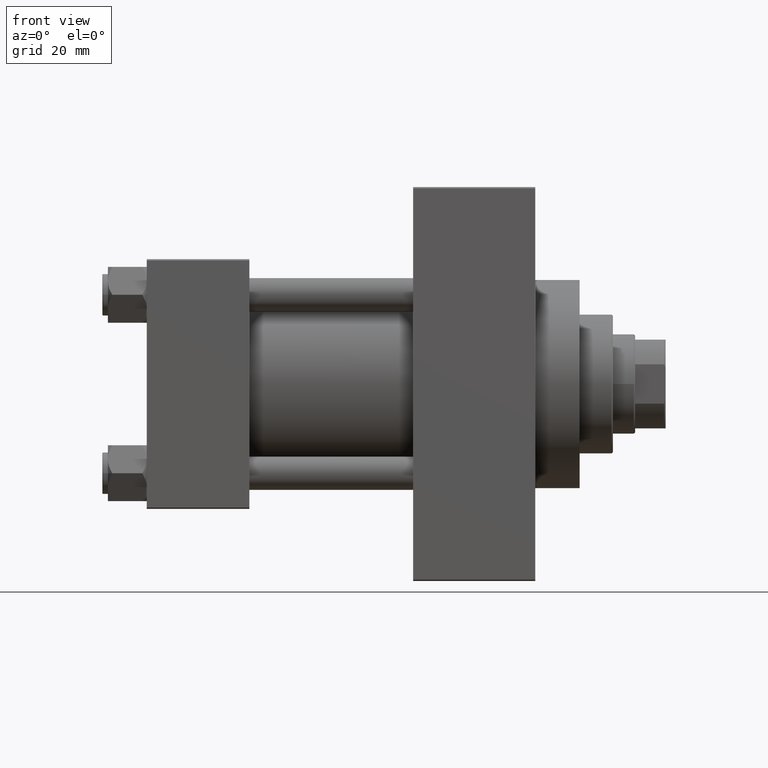
[diagram: clean part render]
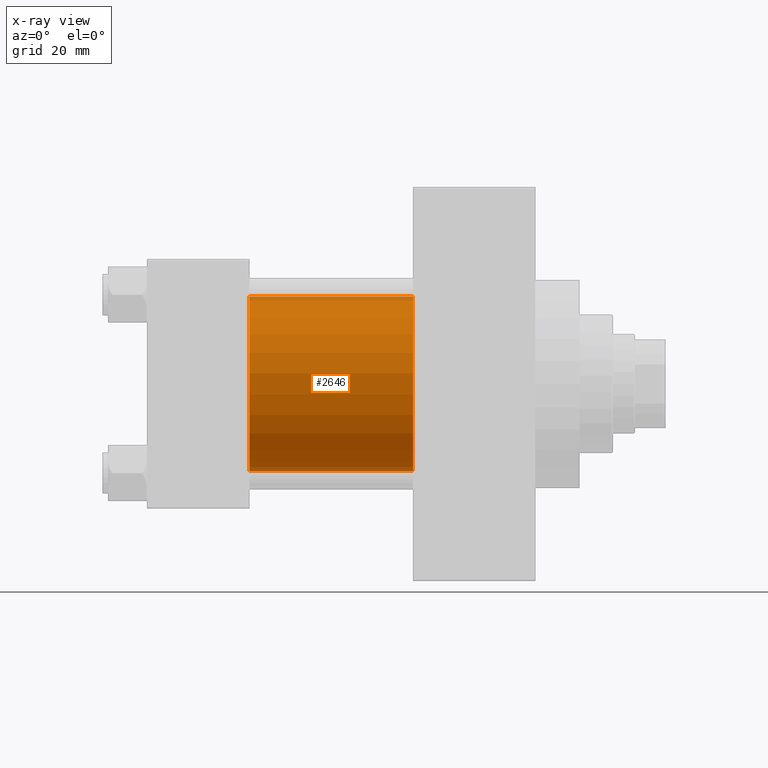
[diagram: x-ray — body ghosted, one internal face saturated and labeled with its STEP entity id]
A machine part, front view, then the same camera in x-ray: the body is ghosted and one INTERNAL B-rep face — a face not visible from any outside direction — is saturated and labeled: STEP entity #2646.
In plain terms, the highlighted cylindrical surface (partial cylindrical patch) has radius 31.5 mm, axis along (-1, -0, -0).
Its self-contained STEP definition (entity closure, byte-faithful):
#782 = DIRECTION ( 'NONE',  ( 1.000000000000000000, 0.000000000000000000, 0.000000000000000000 ) ) ;
#2646 = ADVANCED_FACE ( 'NONE', ( #42927 ), #42687, .F. ) ;
#4017 = VERTEX_POINT ( 'NONE', #13207 ) ;
#4091 = VERTEX_POINT ( 'NONE', #6292 ) ;
#4808 = LINE ( 'NONE', #19363, #28114 ) ;
#6292 = CARTESIAN_POINT ( 'NONE',  ( 96.00000000000000000, 1.255552203348951850E-15, -31.50000000000000000 ) ) ;
#9272 = CARTESIAN_POINT ( 'NONE',  ( 96.00000000000000000, 1.255552203348951850E-15, -31.50000000000000000 ) ) ;
#11593 = EDGE_CURVE ( 'NONE', #12850, #4091, #26956, .T. ) ;
#11750 = CARTESIAN_POINT ( 'NONE',  ( 37.00000000000000000, -2.602085213965210642E-15, 0.000000000000000000 ) ) ;
#12754 = CARTESIAN_POINT ( 'NONE',  ( 37.00000000000000000, -2.602085213965210642E-15, 31.50000000000000000 ) ) ;
#12850 = VERTEX_POINT ( 'NONE', #26552 ) ;
#12924 = EDGE_CURVE ( 'NONE', #15577, #4017, #30047, .T. ) ;
#13083 = DIRECTION ( 'NONE',  ( 0.000000000000000000, 0.000000000000000000, 1.000000000000000000 ) ) ;
#13207 = CARTESIAN_POINT ( 'NONE',  ( 37.00000000000000000, 1.255552203348951850E-15, -31.50000000000000000 ) ) ;
#15577 = VERTEX_POINT ( 'NONE', #12754 ) ;
#17621 = CARTESIAN_POINT ( 'NONE',  ( 96.00000000000000000, -2.602085213965210642E-15, 0.000000000000000000 ) ) ;
#17975 = VECTOR ( 'NONE', #27213, 1000.000000000000000 ) ;
#18498 = DIRECTION ( 'NONE',  ( 0.000000000000000000, 0.000000000000000000, -1.000000000000000000 ) ) ;
#19363 = CARTESIAN_POINT ( 'NONE',  ( 96.00000000000000000, -2.602085213965210642E-15, 31.50000000000000000 ) ) ;
#20731 = DIRECTION ( 'NONE',  ( -1.000000000000000000, -0.000000000000000000, -0.000000000000000000 ) ) ;
#21863 = CARTESIAN_POINT ( 'NONE',  ( 96.00000000000000000, -2.602085213965210642E-15, 0.000000000000000000 ) ) ;
#23208 = AXIS2_PLACEMENT_3D ( 'NONE', #11750, #782, #23446 ) ;
#23446 = DIRECTION ( 'NONE',  ( 0.000000000000000000, 0.000000000000000000, -1.000000000000000000 ) ) ;
#23647 = DIRECTION ( 'NONE',  ( -1.000000000000000000, -0.000000000000000000, -0.000000000000000000 ) ) ;
#24156 = ORIENTED_EDGE ( 'NONE', *, *, #24983, .T. ) ;
#24983 = EDGE_CURVE ( 'NONE', #4091, #4017, #31255, .T. ) ;
#26552 = CARTESIAN_POINT ( 'NONE',  ( 96.00000000000000000, -2.602085213965210642E-15, 31.50000000000000000 ) ) ;
#26956 = CIRCLE ( 'NONE', #45989, 31.50000000000000000 ) ;
#27177 = ORIENTED_EDGE ( 'NONE', *, *, #11593, .T. ) ;
#27213 = DIRECTION ( 'NONE',  ( -1.000000000000000000, -0.000000000000000000, -0.000000000000000000 ) ) ;
#28114 = VECTOR ( 'NONE', #23647, 1000.000000000000000 ) ;
#29264 = DIRECTION ( 'NONE',  ( 1.000000000000000000, 0.000000000000000000, 0.000000000000000000 ) ) ;
#30047 = CIRCLE ( 'NONE', #23208, 31.50000000000000000 ) ;
#30469 = ORIENTED_EDGE ( 'NONE', *, *, #35870, .F. ) ;
#31255 = LINE ( 'NONE', #9272, #17975 ) ;
#35870 = EDGE_CURVE ( 'NONE', #12850, #15577, #4808, .T. ) ;
#39910 = EDGE_LOOP ( 'NONE', ( #27177, #24156, #47154, #30469 ) ) ;
#42687 = CYLINDRICAL_SURFACE ( 'NONE', #45820, 31.50000000000000000 ) ;
#42927 = FACE_OUTER_BOUND ( 'NONE', #39910, .T. ) ;
#45820 = AXIS2_PLACEMENT_3D ( 'NONE', #17621, #20731, #13083 ) ;
#45989 = AXIS2_PLACEMENT_3D ( 'NONE', #21863, #29264, #18498 ) ;
#47154 = ORIENTED_EDGE ( 'NONE', *, *, #12924, .F. ) ;